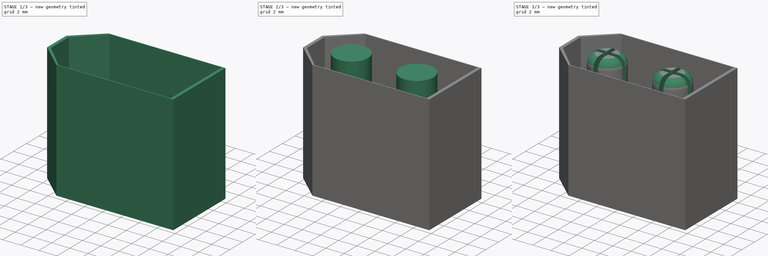
[diagram: build sequence overview — one tinted view per stage of 3, left to right]
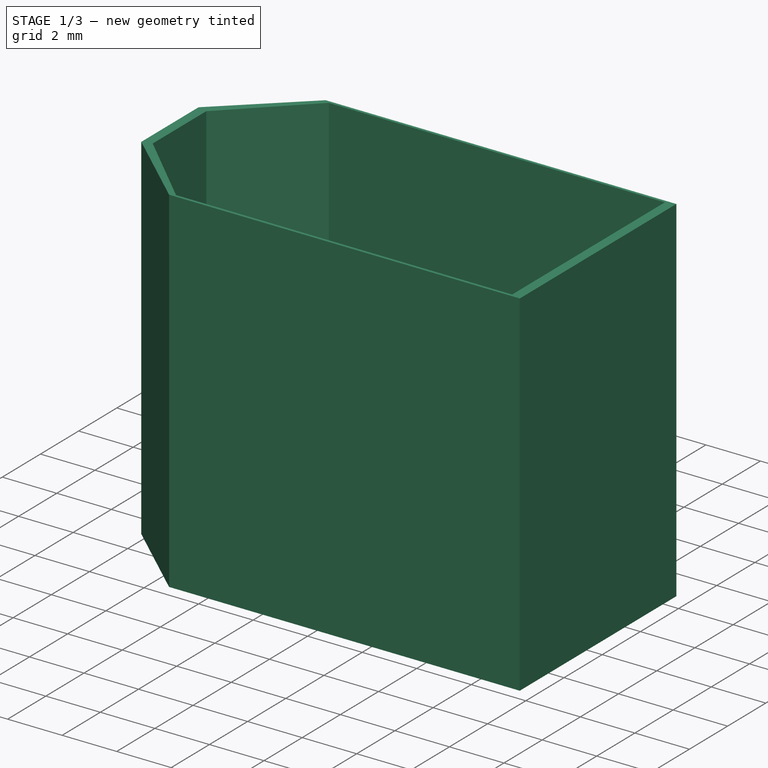
[diagram: stage 1 of 3 — iso view after this stage's code; geometry added in this stage tinted green]
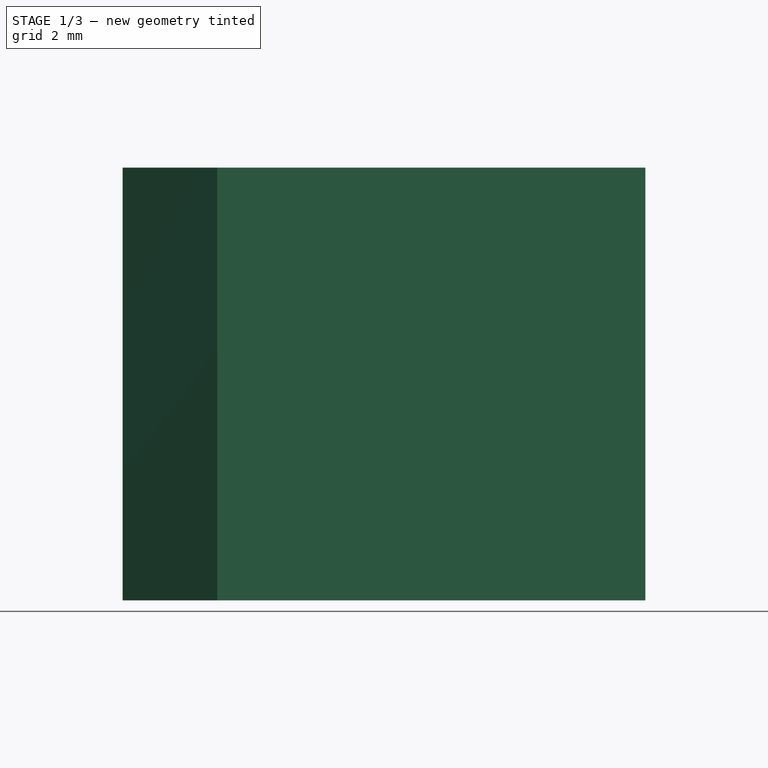
[diagram: stage 1 of 3 — front view after this stage's code; geometry added in this stage tinted green]
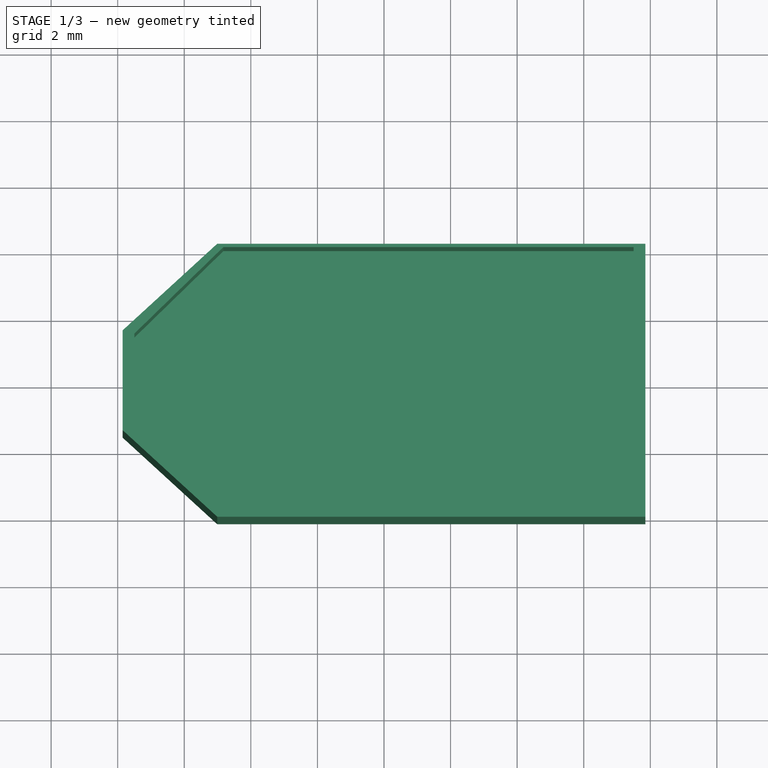
[diagram: stage 1 of 3 — top view after this stage's code; geometry added in this stage tinted green]
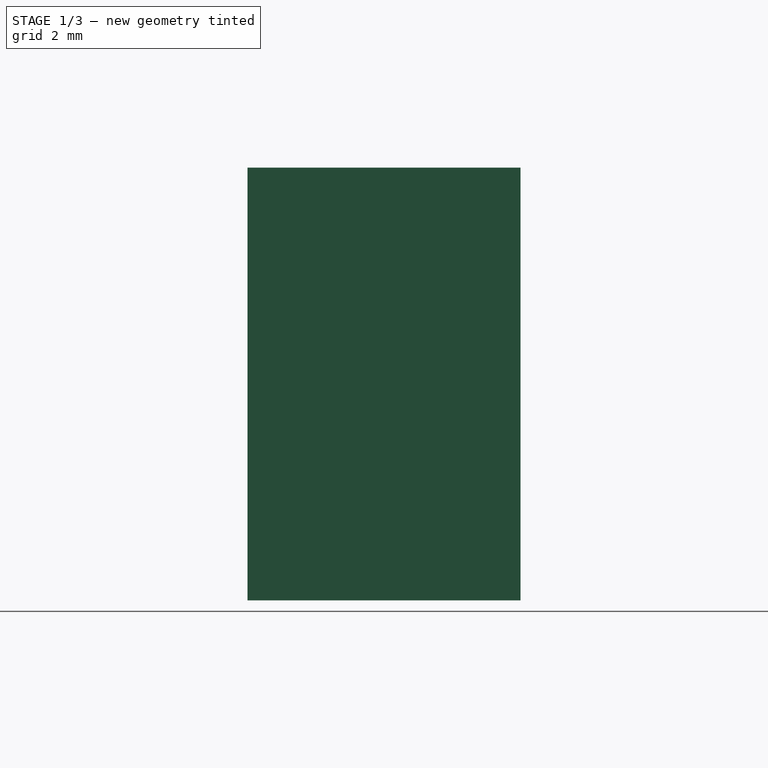
[diagram: stage 1 of 3 — right view after this stage's code; geometry added in this stage tinted green]
FCSTD DOCUMENT  (FreeCAD 0.18RUnknown)
Label: xt60
License: All rights reserved
LicenseURL: http://en.wikipedia.org/wiki/All_rights_reserved
objects: Sketcher::SketchObject×4, PartDesign::Pad×2, PartDesign::Pocket×2, PartDesign::Fillet×1, PartDesign::Body×1
note: 14 computed .brp shape members not serialized (recipe doc carries the construction recipe); baked Part::Feature solids carry a one-line shape summary decoded from their .brp

FEATURE [Sketcher::SketchObject] Sketch
  MapMode = 2
  sketch-geometry (10):
    g0: LineSegment [constr] StartX=-7.85 StartY=4.1 StartZ=0 EndX=7.85 EndY=4.1 EndZ=0
    g1: LineSegment [constr] StartX=7.85 StartY=4.1 StartZ=0 EndX=7.85 EndY=-4.1 EndZ=0
    g2: LineSegment [constr] StartX=7.85 StartY=-4.1 StartZ=0 EndX=-7.85 EndY=-4.1 EndZ=0
    g3: LineSegment [constr] StartX=-7.85 StartY=-4.1 StartZ=0 EndX=-7.85 EndY=4.1 EndZ=0
    g4: LineSegment StartX=7.85 StartY=4.1 StartZ=0 EndX=-5.01055 EndY=4.1 EndZ=0
    g5: LineSegment StartX=-5.01055 StartY=4.1 StartZ=0 EndX=-7.85 EndY=1.5 EndZ=0
    g6: LineSegment StartX=-7.85 StartY=1.5 StartZ=0 EndX=-7.85 EndY=-1.5 EndZ=0
    g7: LineSegment StartX=-7.85 StartY=-1.5 StartZ=0 EndX=-5.01055 EndY=-4.1 EndZ=0
    g8: LineSegment StartX=-5.01055 StartY=-4.1 StartZ=0 EndX=7.85 EndY=-4.1 EndZ=0
    g9: LineSegment StartX=7.85 StartY=-4.1 StartZ=0 EndX=7.85 EndY=4.1 EndZ=0
  constraints (27):
    c: Coincident(g0,g1)
    c: Coincident(g1,g2)
    c: Coincident(g2,g3)
    c: Coincident(g3,g0)
    c: Horizontal(g0)
    c: Horizontal(g2)
    c: Vertical(g1)
    c: Vertical(g3)
    c: DistanceY(g1,g0) = 8.2
    c: DistanceX(g0,g0) = 15.7
    c: Symmetric(g2,g0,g-1)
    c: Coincident(g4,g0)
    c: Horizontal(g4)
    c: Coincident(g5,g4)
    c: PointOnObject(g5,g3)
    c: Coincident(g6,g5)
    c: Coincident(g7,g6)
    c: PointOnObject(g7,g2)
    c: Coincident(g8,g7)
    c: Coincident(g8,g1)
    c: Coincident(g9,g1)
    c: Coincident(g9,g0)
    c: Symmetric(g4,g7,g-1)
    c: Equal(g5,g7)
    c: DistanceY(g6,g6) = 3
    c: Symmetric(g5,g6,g-1)
    c: Distance(g5) = 3.85
FEATURE [PartDesign::Pad] Pad
  Length = 13
  Length2 = 100
  Profile = -> Sketch
  Type = 0
FEATURE [Sketcher::SketchObject] Sketch002
  MapMode = 5
  Placement = pos=(0,0,16) rot=(0,0,1;0rad)
  sketch-geometry (10):
    g0: LineSegment [constr] StartX=-7.5 StartY=4 StartZ=0 EndX=7.5 EndY=4 EndZ=0
    g1: LineSegment [constr] StartX=7.5 StartY=4 StartZ=0 EndX=7.5 EndY=-4 EndZ=0
    g2: LineSegment [constr] StartX=7.5 StartY=-4 StartZ=0 EndX=-7.5 EndY=-4 EndZ=0
    g3: LineSegment [constr] StartX=-7.5 StartY=-4 StartZ=0 EndX=-7.5 EndY=4 EndZ=0
    g4: LineSegment StartX=7.5 StartY=4 StartZ=0 EndX=-4.82551 EndY=4 EndZ=0
    g5: LineSegment StartX=-4.82551 StartY=4 StartZ=0 EndX=-7.5 EndY=1.4 EndZ=0
    g6: LineSegment StartX=-7.5 StartY=1.4 StartZ=0 EndX=-7.5 EndY=-1.4 EndZ=0
    g7: LineSegment StartX=-7.5 StartY=-1.4 StartZ=0 EndX=-4.82551 EndY=-4 EndZ=0
    g8: LineSegment StartX=-4.82551 StartY=-4 StartZ=0 EndX=7.5 EndY=-4 EndZ=0
    g9: LineSegment StartX=7.5 StartY=-4 StartZ=0 EndX=7.5 EndY=4 EndZ=0
  constraints (27):
    c: Coincident(g0,g1)
    c: Coincident(g1,g2)
    c: Coincident(g2,g3)
    c: Coincident(g3,g0)
    c: Horizontal(g0)
    c: Horizontal(g2)
    c: Vertical(g1)
    c: Vertical(g3)
    c: DistanceY(g1,g0) = 8
    c: DistanceX(g0,g0) = 15
    c: Symmetric(g2,g0,g-1)
    c: Coincident(g4,g0)
    c: Horizontal(g4)
    c: Coincident(g5,g4)
    c: PointOnObject(g5,g3)
    c: Coincident(g6,g5)
    c: Coincident(g7,g6)
    c: PointOnObject(g7,g2)
    c: Coincident(g8,g7)
    c: Coincident(g8,g1)
    c: Coincident(g9,g1)
    c: Coincident(g9,g0)
    c: Symmetric(g4,g7,g-1)
    c: Equal(g5,g7)
    c: DistanceY(g6,g6) = 2.8
    c: Symmetric(g5,g6,g-1)
    c: Distance(g5) = 3.73
FEATURE [PartDesign::Pocket] Pocket
  BaseFeature = -> Pad
  Length = 10
  Length2 = 100
  Profile = -> Sketch002
  Type = 0
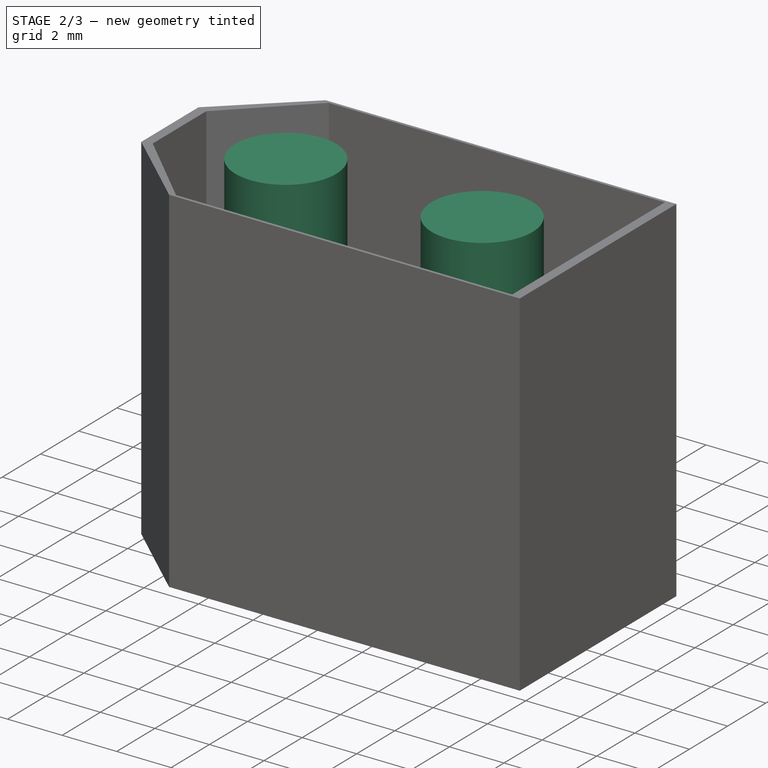
[diagram: stage 2 of 3 — iso view after this stage's code; geometry added in this stage tinted green]
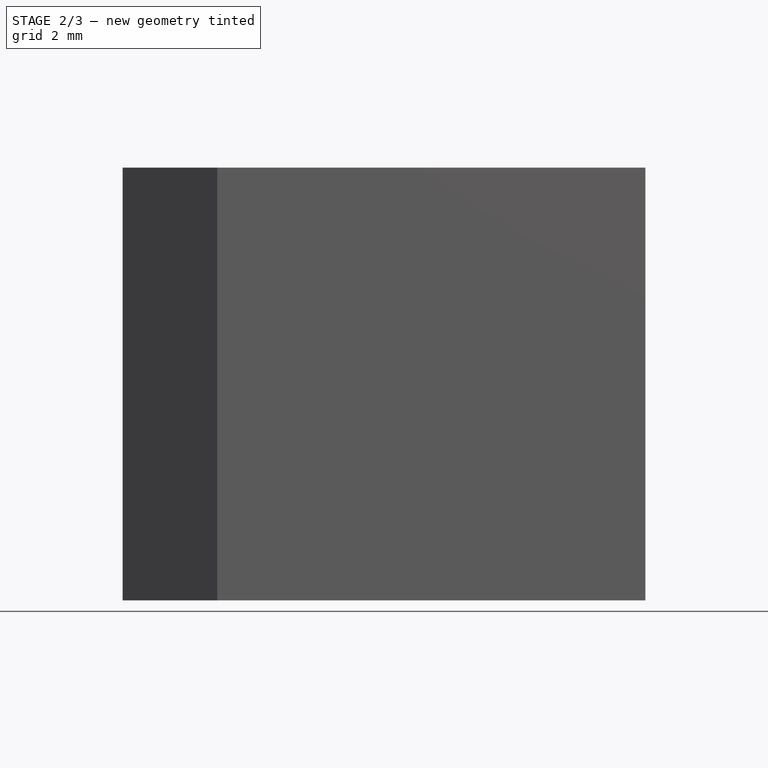
[diagram: stage 2 of 3 — front view after this stage's code; geometry added in this stage tinted green]
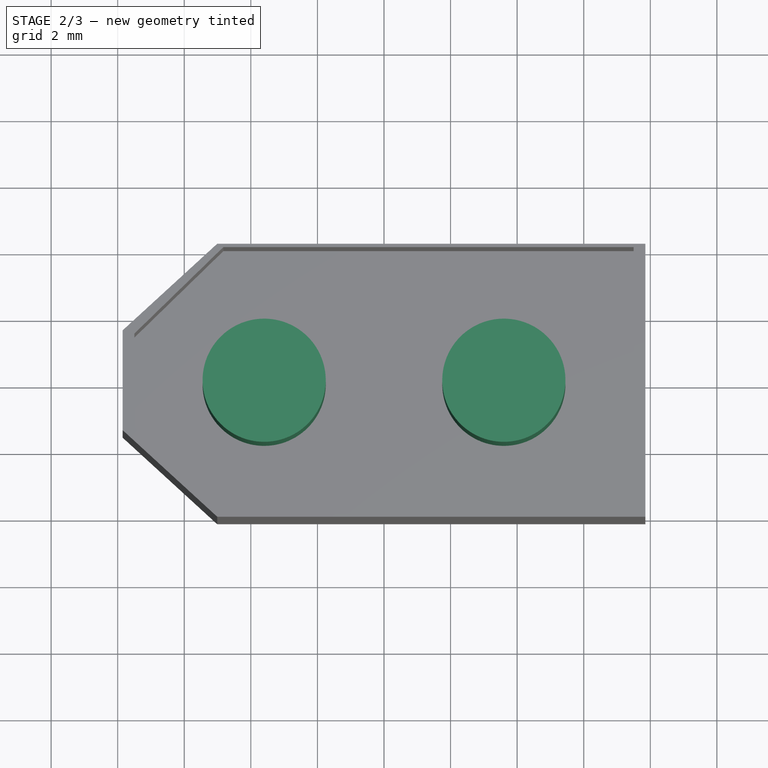
[diagram: stage 2 of 3 — top view after this stage's code; geometry added in this stage tinted green]
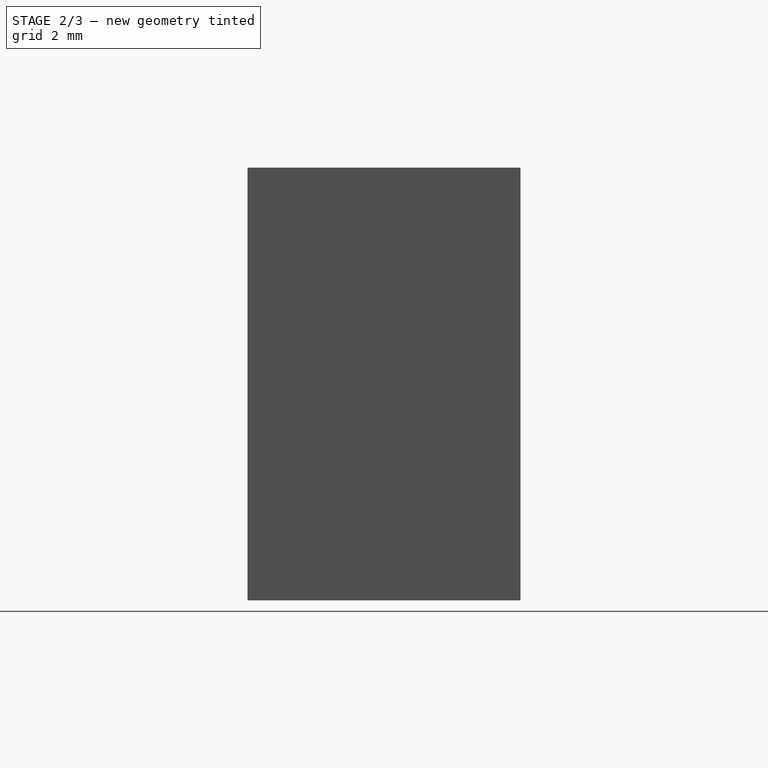
[diagram: stage 2 of 3 — right view after this stage's code; geometry added in this stage tinted green]
FEATURE [Sketcher::SketchObject] Sketch003
  MapMode = 5
  Placement = pos=(0,0,6) rot=(0,0,1;0rad)
  Support = -> [Pocket]
  sketch-geometry (2):
    g0: Circle CenterX=-3.6 CenterY=0 CenterZ=0 NormalX=0 NormalY=0 NormalZ=1 AngleXU=0 Radius=1.85
    g1: Circle CenterX=3.6 CenterY=0 CenterZ=0 NormalX=0 NormalY=0 NormalZ=1 AngleXU=0 Radius=1.85
  constraints (5):
    c: DistanceX(g0,g1) = 7.2
    c: Equal(g1,g0)
    c: Radius(g1) = 1.85
    c: PointOnObject(g0,g-1)
    c: Symmetric(g0,g1,g-2)
FEATURE [PartDesign::Pad] Pad001
  BaseFeature = -> Pocket
  Length = 7
  Length2 = 100
  Profile = -> Sketch003
  Type = 0
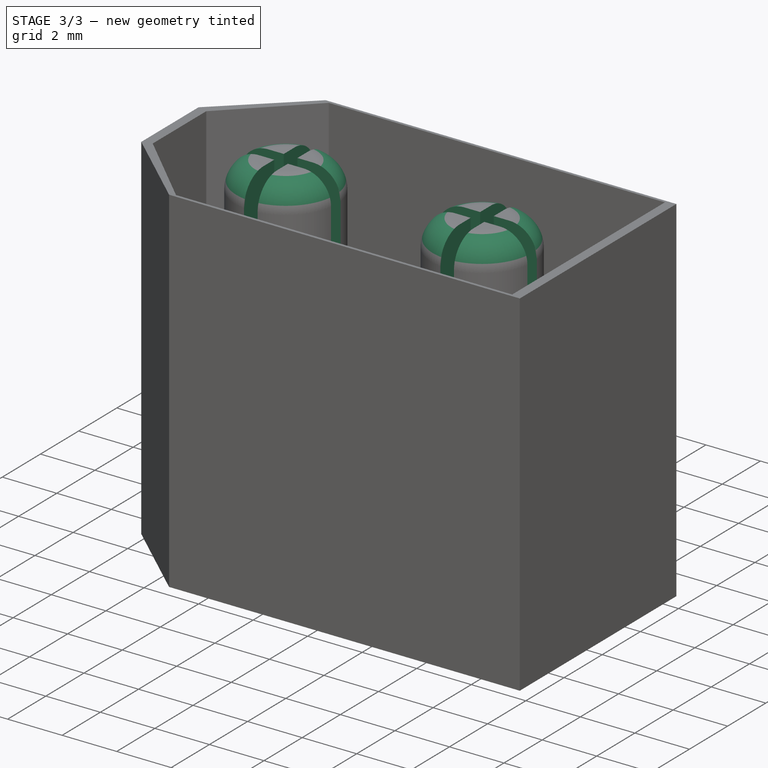
[diagram: stage 3 of 3 — iso view after this stage's code; geometry added in this stage tinted green]
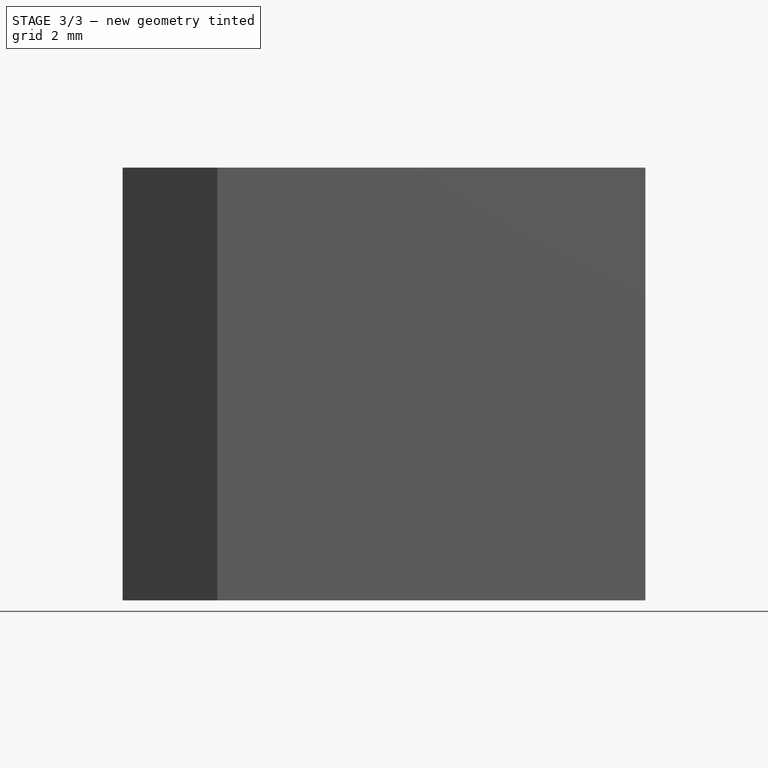
[diagram: stage 3 of 3 — front view after this stage's code; geometry added in this stage tinted green]
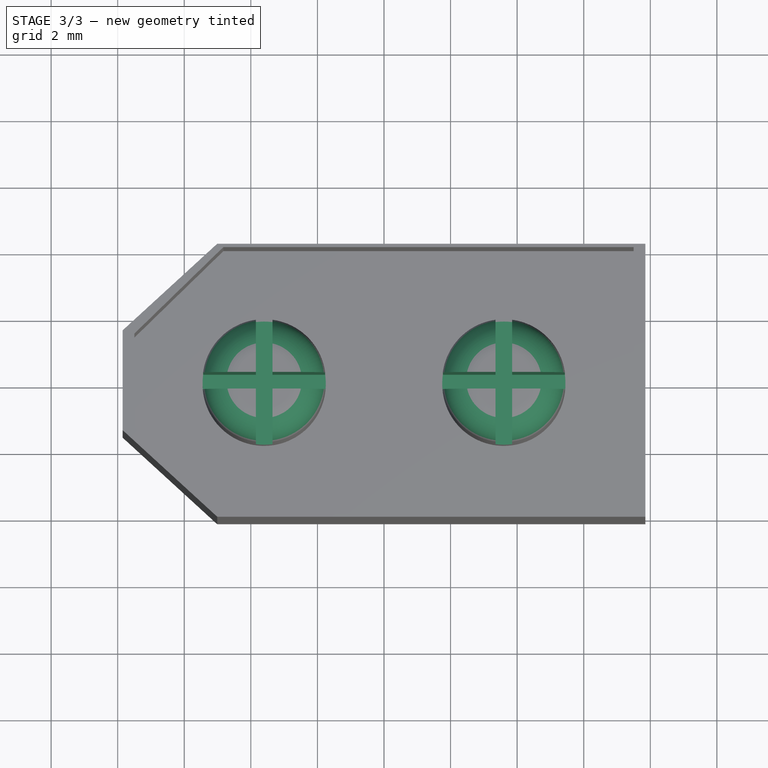
[diagram: stage 3 of 3 — top view after this stage's code; geometry added in this stage tinted green]
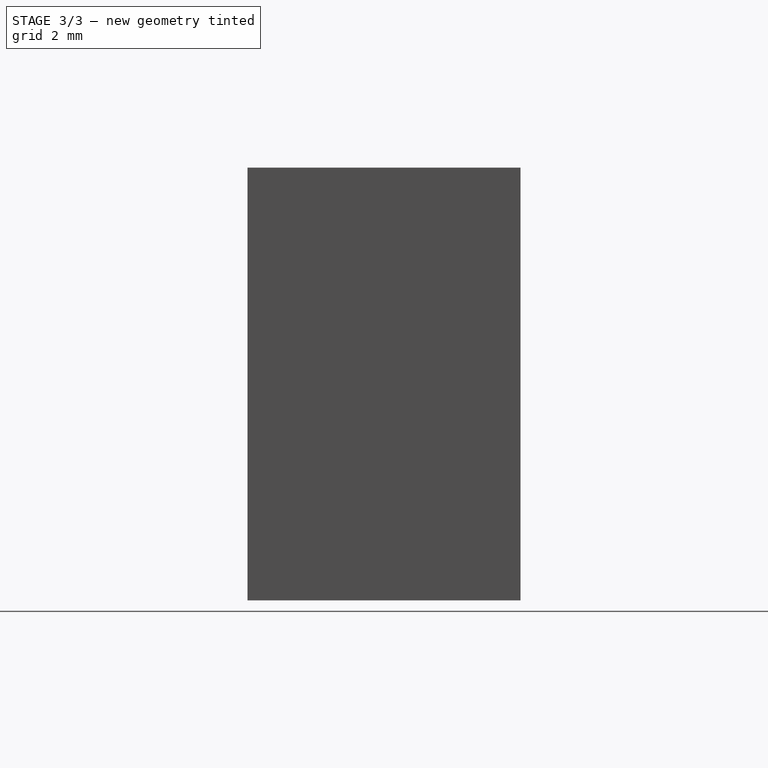
[diagram: stage 3 of 3 — right view after this stage's code; geometry added in this stage tinted green]
FEATURE [PartDesign::Fillet] Fillet
  Base = -> Pad001 [Face19,Face18]
  BaseFeature = -> Pad001
  Radius = 1
FEATURE [Sketcher::SketchObject] Sketch004
  MapMode = 5
  Placement = pos=(0,0,13) rot=(0,0,1;0rad)
  Support = -> [Fillet]
  sketch-geometry (28):
    g0: LineSegment StartX=-3.85 StartY=2.25 StartZ=0 EndX=-3.35 EndY=2.25 EndZ=0
    g1: LineSegment StartX=-3.35 StartY=-2.25 StartZ=0 EndX=-3.85 EndY=-2.25 EndZ=0
    g2: LineSegment StartX=-3.85 StartY=2.25 StartZ=0 EndX=-3.85 EndY=0.25 EndZ=0
    g3: LineSegment StartX=-3.85 StartY=0.25 StartZ=0 EndX=-5.85 EndY=0.25 EndZ=0
    g4: LineSegment StartX=-5.85 StartY=0.25 StartZ=0 EndX=-5.85 EndY=-0.25 EndZ=0
    g5: LineSegment StartX=-5.85 StartY=-0.25 StartZ=0 EndX=-3.85 EndY=-0.25 EndZ=0
    g6: LineSegment StartX=-3.85 StartY=-0.25 StartZ=0 EndX=-3.85 EndY=-2.25 EndZ=0
    g7: LineSegment StartX=-3.35 StartY=-0.25 StartZ=0 EndX=-3.35 EndY=-2.25 EndZ=0
    g8: LineSegment StartX=-3.35 StartY=-0.25 StartZ=0 EndX=-1.35 EndY=-0.25 EndZ=0
    g9: LineSegment StartX=-1.35 StartY=-0.25 StartZ=0 EndX=-1.35 EndY=0.25 EndZ=0
    g10: LineSegment StartX=-1.35 StartY=0.25 StartZ=0 EndX=-3.35 EndY=0.25 EndZ=0
    g11: LineSegment StartX=-3.35 StartY=0.25 StartZ=0 EndX=-3.35 EndY=2.25 EndZ=0
    g12: LineSegment [constr] StartX=-3.6 StartY=2.25 StartZ=0 EndX=-3.6 EndY=-2.25 EndZ=0
    g13: GeomPoint X=-3.6 Y=0 Z=0
    g14: LineSegment StartX=3.85 StartY=2.25 StartZ=0 EndX=3.35 EndY=2.25 EndZ=0
    g15: LineSegment StartX=3.35 StartY=-2.25 StartZ=0 EndX=3.85 EndY=-2.25 EndZ=0
    g16: LineSegment StartX=3.85 StartY=2.25 StartZ=0 EndX=3.85 EndY=0.25 EndZ=0
    g17: LineSegment StartX=3.85 StartY=0.25 StartZ=0 EndX=5.85 EndY=0.25 EndZ=0
    g18: LineSegment StartX=5.85 StartY=0.25 StartZ=0 EndX=5.85 EndY=-0.25 EndZ=0
    g19: LineSegment StartX=5.85 StartY=-0.25 StartZ=0 EndX=3.85 EndY=-0.25 EndZ=0
    g20: LineSegment StartX=3.85 StartY=-0.25 StartZ=0 EndX=3.85 EndY=-2.25 EndZ=0
    g21: LineSegment StartX=3.35 StartY=-0.25 StartZ=0 EndX=3.35 EndY=-2.25 EndZ=0
    g22: LineSegment StartX=3.35 StartY=-0.25 StartZ=0 EndX=1.35 EndY=-0.25 EndZ=0
    g23: LineSegment StartX=1.35 StartY=-0.25 StartZ=0 EndX=1.35 EndY=0.25 EndZ=0
    g24: LineSegment StartX=1.35 StartY=0.25 StartZ=0 EndX=3.35 EndY=0.25 EndZ=0
    g25: LineSegment StartX=3.35 StartY=0.25 StartZ=0 EndX=3.35 EndY=2.25 EndZ=0
    g26: LineSegment [constr] StartX=3.6 StartY=2.25 StartZ=0 EndX=3.6 EndY=-2.25 EndZ=0
    g27: GeomPoint X=3.6 Y=0 Z=0
  constraints (79):
    c: Horizontal(g0)
    c: Horizontal(g1)
    c: Coincident(g2,g0)
    c: Coincident(g0,g11)
    c: Coincident(g11,g10)
    c: Coincident(g10,g9)
    c: Coincident(g8,g9)
    c: Coincident(g7,g8)
    c: Coincident(g6,g5)
    c: Coincident(g5,g4)
    c: Coincident(g4,g3)
    c: Coincident(g6,g1)
    c: Coincident(g7,g1)
    c: Coincident(g3,g2)
    c: Vertical(g11)
    c: Equal(g2,g11)
    c: Vertical(g7)
    c: Equal(g7,g6)
    c: Equal(g6,g2)
    c: Equal(g10,g8)
    c: Equal(g3,g5)
    c: Horizontal(g3)
    c: Horizontal(g10)
    c: Horizontal(g8)
    c: Horizontal(g5)
    c: Vertical(g6)
    c: Vertical(g2)
    c: Vertical(g4)
    c: PointOnObject(g12,g1)
    c: Vertical(g12)
    c: PointOnObject(g13,g12)
    c: PointOnObject(g13,g-1)
    c: DistanceX(g0,g0) = 0.5
    c: Symmetric(g0,g0,g12)
    c: Equal(g9,g1)
    c: Symmetric(g8,g9,g-1)
    c: DistanceX(g13,g-1) = 3.6
    c: DistanceY(g7,g7) = 2
    c: Equal(g5,g6)
    c: Equal(g11,g10)
    c: Horizontal(g14)
    c: Horizontal(g15)
    c: Coincident(g16,g14)
    c: Coincident(g14,g25)
    c: Coincident(g25,g24)
    c: Coincident(g24,g23)
    c: Coincident(g22,g23)
    c: Coincident(g21,g22)
    c: Coincident(g20,g19)
    c: Coincident(g19,g18)
    c: Coincident(g18,g17)
    c: Coincident(g20,g15)
    c: Coincident(g21,g15)
    c: Coincident(g17,g16)
    c: Vertical(g25)
    c: Equal(g16,g25)
    c: Vertical(g21)
    c: Equal(g21,g20)
    c: Equal(g20,g16)
    c: Equal(g24,g22)
    c: Equal(g17,g19)
    c: Horizontal(g17)
    c: Horizontal(g24)
    c: Horizontal(g22)
    c: Horizontal(g19)
    c: Vertical(g20)
    c: Vertical(g16)
    c: PointOnObject(g26,g15)
    c: Vertical(g26)
    c: PointOnObject(g27,g26)
    c: Symmetric(g14,g14,g26)
    c: Equal(g23,g15)
    c: Equal(g19,g20)
    c: Equal(g25,g24)
    c: Equal(g24,g10)
    c: Equal(g23,g9)
    c: DistanceX(g-1,g27) = 3.6
    c: Vertical(g23)
    c: Symmetric(g17,g18,g-1)
FEATURE [PartDesign::Pocket] Pocket001
  BaseFeature = -> Fillet
  Length = 5
  Length2 = 100
  Profile = -> Sketch004
  Type = 0
FEATURE [PartDesign::Body] Body
  Group = -> [Sketch,Pad,Sketch002,Pocket,Sketch003,Pad001,Fillet,Sketch004,Pocket001]
  Origin = -> Origin
  Tip = -> Pocket001
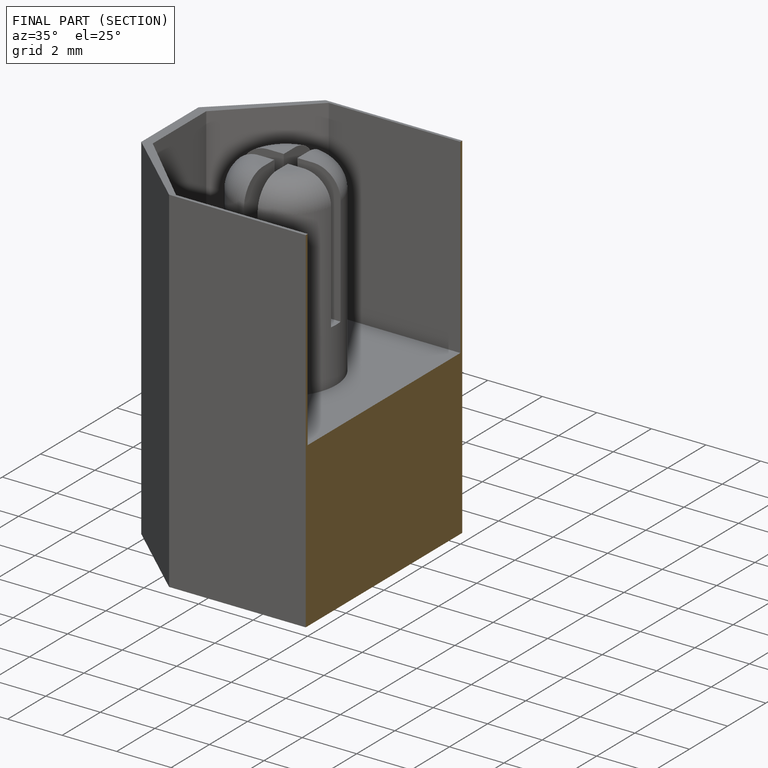
[diagram: finished part — half-section view (interior)]
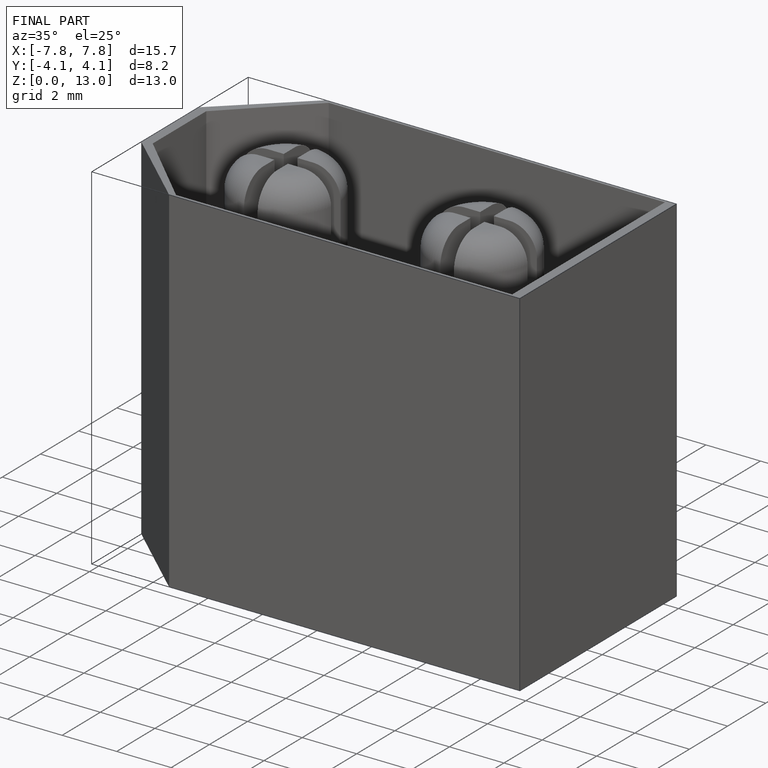
[diagram: finished part — iso view with bounding-box wireframe]
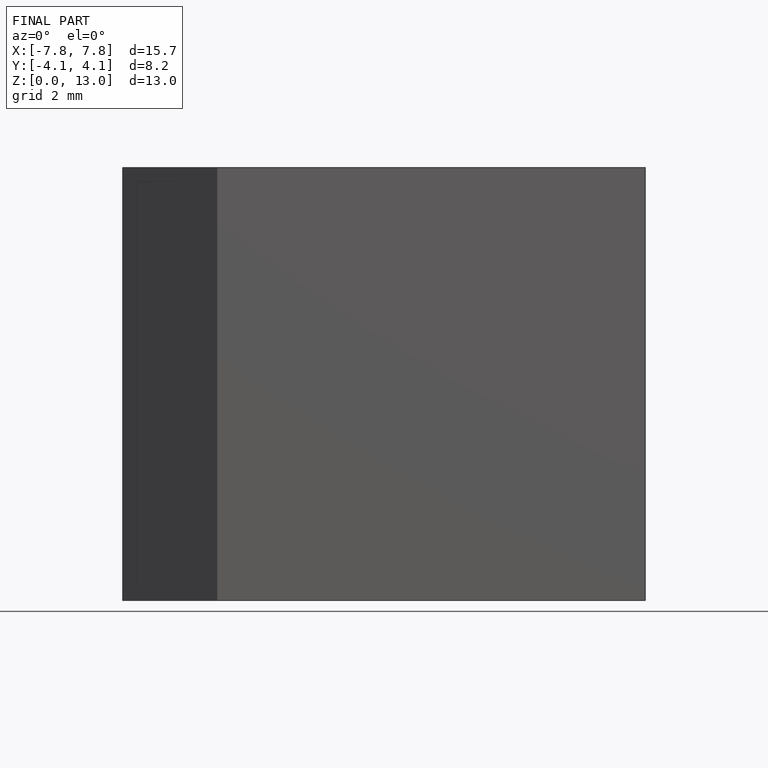
[diagram: finished part — front view with bounding-box wireframe]
